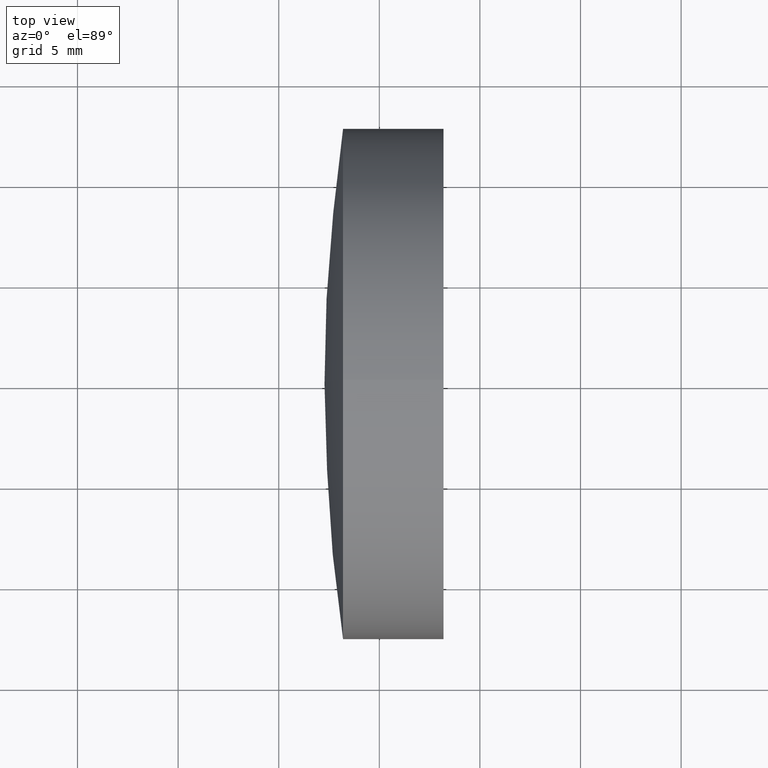
[diagram: clean part render]
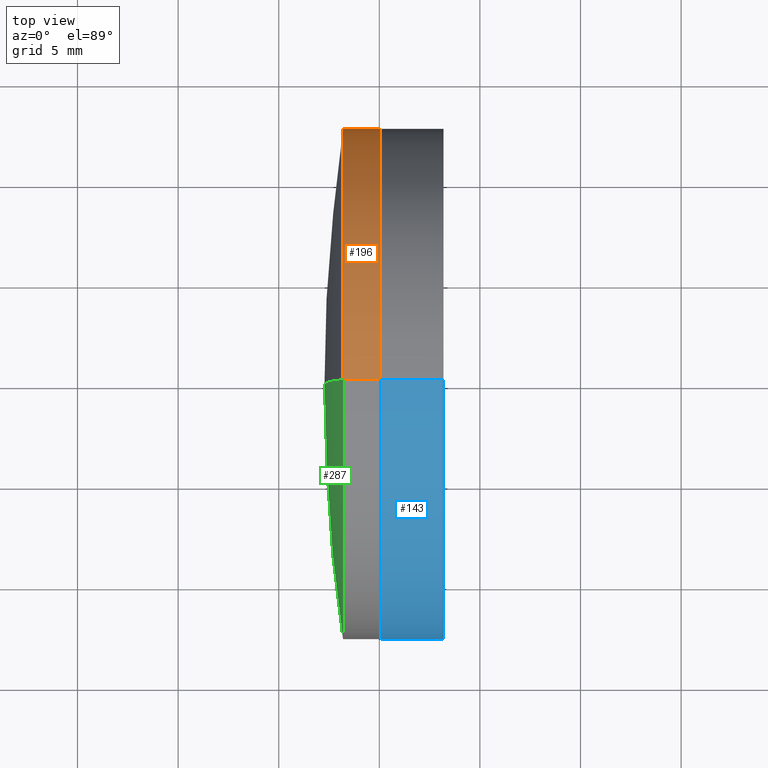
[diagram: same view with three faces highlighted in distinct colors, each labeled with its STEP entity id]
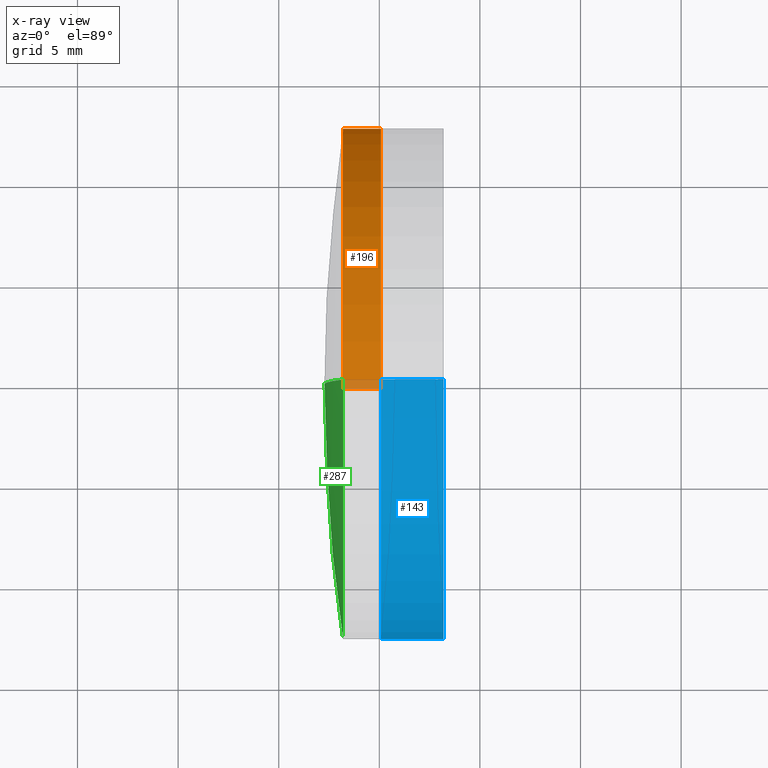
[diagram: x-ray of the same camera — body ghosted, the three highlighted faces saturated]
A machine part, top view with three faces highlighted in distinct colors.
The next image is the same camera in x-ray (body ghosted, the three faces saturated) — at least one of them is partly hidden behind the body in this view.
Their STEP definitions:

[orange] entity #196 — the highlighted cylindrical surface (partial cylindrical patch) has radius 12.7 mm, axis along (-1, -0, -0).
#10 = ORIENTED_EDGE ( 'NONE', *, *, #198, .T. ) ;
#17 = EDGE_CURVE ( 'NONE', #218, #347, #48, .T. ) ;
#31 = CARTESIAN_POINT ( 'NONE',  ( -0.8160621761658039000, 0.0000000000000000000, 12.70000000000001700 ) ) ;
#33 = FACE_OUTER_BOUND ( 'NONE', #295, .T. ) ;
#39 = CARTESIAN_POINT ( 'NONE',  ( 95.07472966492228700, 0.0000000000000000000, 0.0000000000000000000 ) ) ;
#46 = AXIS2_PLACEMENT_3D ( 'NONE', #39, #199, #71 ) ;
#48 = LINE ( 'NONE', #31, #58 ) ;
#56 = EDGE_CURVE ( 'NONE', #347, #135, #78, .T. ) ;
#58 = VECTOR ( 'NONE', #223, 1000.000000000000000 ) ;
#59 = VERTEX_POINT ( 'NONE', #258 ) ;
#61 = DIRECTION ( 'NONE',  ( 0.0000000000000000000, 0.0000000000000000000, 1.000000000000000000 ) ) ;
#71 = DIRECTION ( 'NONE',  ( 0.0000000000000000000, 0.0000000000000000000, 1.000000000000000000 ) ) ;
#78 = CIRCLE ( 'NONE', #265, 12.70000000000001700 ) ;
#85 = DIRECTION ( 'NONE',  ( -1.000000000000000000, -0.0000000000000000000, -0.0000000000000000000 ) ) ;
#123 = ORIENTED_EDGE ( 'NONE', *, *, #184, .T. ) ;
#135 = VERTEX_POINT ( 'NONE', #307 ) ;
#163 = VECTOR ( 'NONE', #291, 1000.000000000000000 ) ;
#169 = ORIENTED_EDGE ( 'NONE', *, *, #17, .F. ) ;
#175 = DIRECTION ( 'NONE',  ( 0.0000000000000000000, 0.0000000000000000000, 1.000000000000000000 ) ) ;
#184 = EDGE_CURVE ( 'NONE', #218, #59, #275, .T. ) ;
#196 = ADVANCED_FACE ( 'NONE', ( #33 ), #203, .T. ) ;
#198 = EDGE_CURVE ( 'NONE', #59, #135, #266, .T. ) ;
#199 = DIRECTION ( 'NONE',  ( -1.000000000000000000, -0.0000000000000000000, -0.0000000000000000000 ) ) ;
#203 = CYLINDRICAL_SURFACE ( 'NONE', #319, 12.70000000000001700 ) ;
#218 = VERTEX_POINT ( 'NONE', #267 ) ;
#223 = DIRECTION ( 'NONE',  ( -1.000000000000000000, -0.0000000000000000000, -0.0000000000000000000 ) ) ;
#226 = DIRECTION ( 'NONE',  ( -1.000000000000000000, -0.0000000000000000000, -0.0000000000000000000 ) ) ;
#248 = CARTESIAN_POINT ( 'NONE',  ( 93.19768497055619600, 0.0000000000000000000, 0.0000000000000000000 ) ) ;
#258 = CARTESIAN_POINT ( 'NONE',  ( 95.07472966492228700, 1.555301434917141000E-015, -12.70000000000002100 ) ) ;
#264 = CARTESIAN_POINT ( 'NONE',  ( -0.8160621761658039000, 1.555301434917140600E-015, -12.70000000000001700 ) ) ;
#265 = AXIS2_PLACEMENT_3D ( 'NONE', #248, #85, #61 ) ;
#266 = LINE ( 'NONE', #264, #163 ) ;
#267 = CARTESIAN_POINT ( 'NONE',  ( 95.07472966492228700, 0.0000000000000000000, 12.70000000000001900 ) ) ;
#275 = CIRCLE ( 'NONE', #46, 12.70000000000001900 ) ;
#288 = ORIENTED_EDGE ( 'NONE', *, *, #56, .F. ) ;
#291 = DIRECTION ( 'NONE',  ( -1.000000000000000000, -0.0000000000000000000, -0.0000000000000000000 ) ) ;
#295 = EDGE_LOOP ( 'NONE', ( #123, #10, #288, #169 ) ) ;
#307 = CARTESIAN_POINT ( 'NONE',  ( 93.19768497055619600, 0.0000000000000000000, -12.69999999999996900 ) ) ;
#319 = AXIS2_PLACEMENT_3D ( 'NONE', #338, #226, #175 ) ;
#338 = CARTESIAN_POINT ( 'NONE',  ( -0.8160621761658039000, 0.0000000000000000000, 0.0000000000000000000 ) ) ;
#344 = CARTESIAN_POINT ( 'NONE',  ( 93.19768497055619600, -1.555301434917134900E-015, 12.70000000000003500 ) ) ;
#347 = VERTEX_POINT ( 'NONE', #344 ) ;

[blue] entity #143 — the highlighted cylindrical surface (partial cylindrical patch) has radius 12.7 mm, axis along (-1, -0, -0).
#2 = VERTEX_POINT ( 'NONE', #332 ) ;
#4 = VERTEX_POINT ( 'NONE', #94 ) ;
#7 = CARTESIAN_POINT ( 'NONE',  ( -0.5519199926577972300, 1.555301434917150900E-015, -12.70000000000010100 ) ) ;
#14 = DIRECTION ( 'NONE',  ( -1.000000000000000000, -0.0000000000000000000, -0.0000000000000000000 ) ) ;
#28 = ORIENTED_EDGE ( 'NONE', *, *, #108, .F. ) ;
#29 = DIRECTION ( 'NONE',  ( -1.000000000000000000, -0.0000000000000000000, -0.0000000000000000000 ) ) ;
#35 = CARTESIAN_POINT ( 'NONE',  ( -0.5519199926577972300, 0.0000000000000000000, 12.70000000000010100 ) ) ;
#63 = CIRCLE ( 'NONE', #77, 12.70000000000010100 ) ;
#77 = AXIS2_PLACEMENT_3D ( 'NONE', #177, #14, #204 ) ;
#80 = LINE ( 'NONE', #7, #158 ) ;
#81 = AXIS2_PLACEMENT_3D ( 'NONE', #289, #124, #310 ) ;
#89 = CARTESIAN_POINT ( 'NONE',  ( 98.19036787198696500, -1.555301434917148100E-015, 12.70000000000007900 ) ) ;
#90 = DIRECTION ( 'NONE',  ( -1.000000000000000000, -0.0000000000000000000, -0.0000000000000000000 ) ) ;
#94 = CARTESIAN_POINT ( 'NONE',  ( 95.07472966492230200, 0.0000000000000000000, 12.70000000000002100 ) ) ;
#108 = EDGE_CURVE ( 'NONE', #2, #197, #80, .T. ) ;
#114 = CIRCLE ( 'NONE', #81, 12.70000000000010100 ) ;
#124 = DIRECTION ( 'NONE',  ( -1.000000000000000000, -0.0000000000000000000, -0.0000000000000000000 ) ) ;
#131 = EDGE_CURVE ( 'NONE', #174, #4, #317, .T. ) ;
#141 = CARTESIAN_POINT ( 'NONE',  ( -0.5519199926577972300, 0.0000000000000000000, 0.0000000000000000000 ) ) ;
#143 = ADVANCED_FACE ( 'NONE', ( #323 ), #299, .T. ) ;
#150 = VECTOR ( 'NONE', #90, 1000.000000000000000 ) ;
#158 = VECTOR ( 'NONE', #29, 1000.000000000000000 ) ;
#174 = VERTEX_POINT ( 'NONE', #89 ) ;
#177 = CARTESIAN_POINT ( 'NONE',  ( 98.19036787198697900, 0.0000000000000000000, 0.0000000000000000000 ) ) ;
#188 = EDGE_CURVE ( 'NONE', #197, #4, #114, .T. ) ;
#192 = EDGE_CURVE ( 'NONE', #2, #174, #63, .T. ) ;
#197 = VERTEX_POINT ( 'NONE', #230 ) ;
#204 = DIRECTION ( 'NONE',  ( 0.0000000000000000000, 0.0000000000000000000, 1.000000000000000000 ) ) ;
#212 = ORIENTED_EDGE ( 'NONE', *, *, #188, .F. ) ;
#230 = CARTESIAN_POINT ( 'NONE',  ( 95.07472966492230200, 1.555301434917141200E-015, -12.70000000000006500 ) ) ;
#235 = AXIS2_PLACEMENT_3D ( 'NONE', #141, #253, #286 ) ;
#253 = DIRECTION ( 'NONE',  ( -1.000000000000000000, -0.0000000000000000000, -0.0000000000000000000 ) ) ;
#273 = ORIENTED_EDGE ( 'NONE', *, *, #192, .T. ) ;
#286 = DIRECTION ( 'NONE',  ( 0.0000000000000000000, 0.0000000000000000000, 1.000000000000000000 ) ) ;
#289 = CARTESIAN_POINT ( 'NONE',  ( 95.07472966492230200, 0.0000000000000000000, 0.0000000000000000000 ) ) ;
#299 = CYLINDRICAL_SURFACE ( 'NONE', #235, 12.70000000000010100 ) ;
#302 = EDGE_LOOP ( 'NONE', ( #28, #273, #318, #212 ) ) ;
#310 = DIRECTION ( 'NONE',  ( 0.0000000000000000000, 0.0000000000000000000, 1.000000000000000000 ) ) ;
#317 = LINE ( 'NONE', #35, #150 ) ;
#318 = ORIENTED_EDGE ( 'NONE', *, *, #131, .T. ) ;
#323 = FACE_OUTER_BOUND ( 'NONE', #302, .T. ) ;
#332 = CARTESIAN_POINT ( 'NONE',  ( 98.19036787198696500, 0.0000000000000000000, -12.70000000000007900 ) ) ;

[green] entity #287 — the highlighted spherical surface has radius 87.9 mm.
#20 = CIRCLE ( 'NONE', #60, 87.90000000000000600 ) ;
#44 = CARTESIAN_POINT ( 'NONE',  ( 93.19768497055619600, 0.0000000000000000000, 0.0000000000000000000 ) ) ;
#47 = SPHERICAL_SURFACE ( 'NONE', #127, 87.90000000000000600 ) ;
#51 = EDGE_LOOP ( 'NONE', ( #103, #200, #240 ) ) ;
#60 = AXIS2_PLACEMENT_3D ( 'NONE', #292, #129, #314 ) ;
#68 = AXIS2_PLACEMENT_3D ( 'NONE', #283, #116, #284 ) ;
#74 = DIRECTION ( 'NONE',  ( 0.0000000000000000000, 0.0000000000000000000, 1.000000000000000000 ) ) ;
#103 = ORIENTED_EDGE ( 'NONE', *, *, #231, .T. ) ;
#116 = DIRECTION ( 'NONE',  ( 0.0000000000000000000, -1.000000000000000000, -1.224646799147353200E-016 ) ) ;
#127 = AXIS2_PLACEMENT_3D ( 'NONE', #183, #343, #242 ) ;
#129 = DIRECTION ( 'NONE',  ( 0.0000000000000000000, 1.000000000000000000, -0.0000000000000000000 ) ) ;
#135 = VERTEX_POINT ( 'NONE', #307 ) ;
#165 = EDGE_CURVE ( 'NONE', #347, #263, #313, .T. ) ;
#172 = CIRCLE ( 'NONE', #256, 12.70000000000001700 ) ;
#183 = CARTESIAN_POINT ( 'NONE',  ( 180.1753832615549100, 0.0000000000000000000, 6.432216733435462300E-014 ) ) ;
#200 = ORIENTED_EDGE ( 'NONE', *, *, #165, .T. ) ;
#231 = EDGE_CURVE ( 'NONE', #135, #347, #172, .T. ) ;
#233 = DIRECTION ( 'NONE',  ( -1.000000000000000000, -0.0000000000000000000, -0.0000000000000000000 ) ) ;
#234 = CARTESIAN_POINT ( 'NONE',  ( 92.27538326155490700, 0.0000000000000000000, 5.893984465210199900E-014 ) ) ;
#240 = ORIENTED_EDGE ( 'NONE', *, *, #241, .F. ) ;
#241 = EDGE_CURVE ( 'NONE', #135, #263, #20, .T. ) ;
#242 = DIRECTION ( 'NONE',  ( 0.0000000000000000000, 0.0000000000000000000, -1.000000000000000000 ) ) ;
#256 = AXIS2_PLACEMENT_3D ( 'NONE', #44, #233, #74 ) ;
#263 = VERTEX_POINT ( 'NONE', #234 ) ;
#283 = CARTESIAN_POINT ( 'NONE',  ( 180.1753832615549100, 0.0000000000000000000, 6.432216733435462300E-014 ) ) ;
#284 = DIRECTION ( 'NONE',  ( 0.0000000000000000000, 1.224646799147353200E-016, -1.000000000000000000 ) ) ;
#287 = ADVANCED_FACE ( 'NONE', ( #301 ), #47, .T. ) ;
#292 = CARTESIAN_POINT ( 'NONE',  ( 180.1753832615549100, 0.0000000000000000000, 6.432216733435462300E-014 ) ) ;
#301 = FACE_OUTER_BOUND ( 'NONE', #51, .T. ) ;
#307 = CARTESIAN_POINT ( 'NONE',  ( 93.19768497055619600, 0.0000000000000000000, -12.69999999999996900 ) ) ;
#313 = CIRCLE ( 'NONE', #68, 87.90000000000000600 ) ;
#314 = DIRECTION ( 'NONE',  ( 0.0000000000000000000, 0.0000000000000000000, 1.000000000000000000 ) ) ;
#343 = DIRECTION ( 'NONE',  ( -0.0000000000000000000, -1.000000000000000000, -0.0000000000000000000 ) ) ;
#344 = CARTESIAN_POINT ( 'NONE',  ( 93.19768497055619600, -1.555301434917134900E-015, 12.70000000000003500 ) ) ;
#347 = VERTEX_POINT ( 'NONE', #344 ) ;